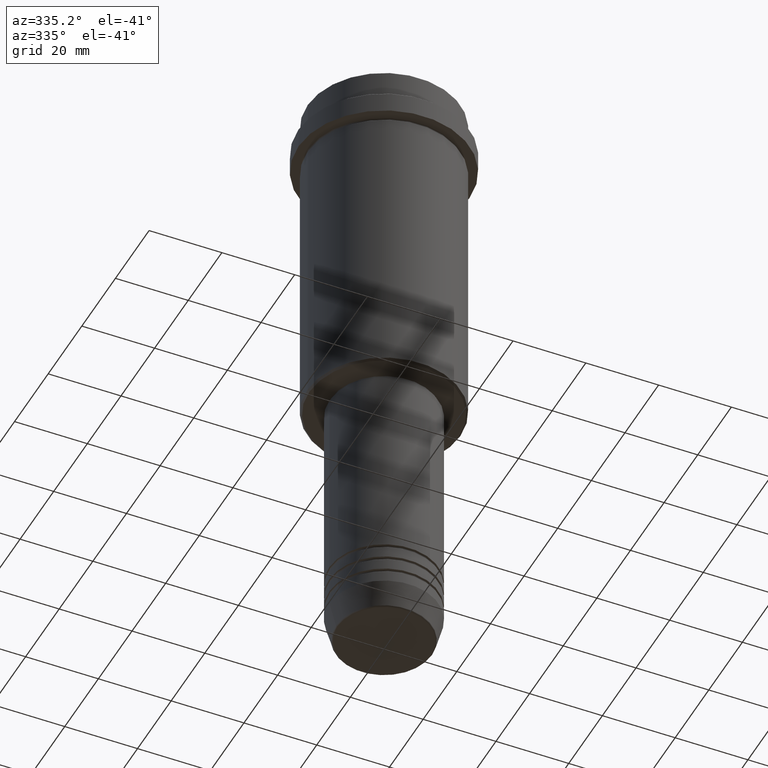
[diagram: clean part render]
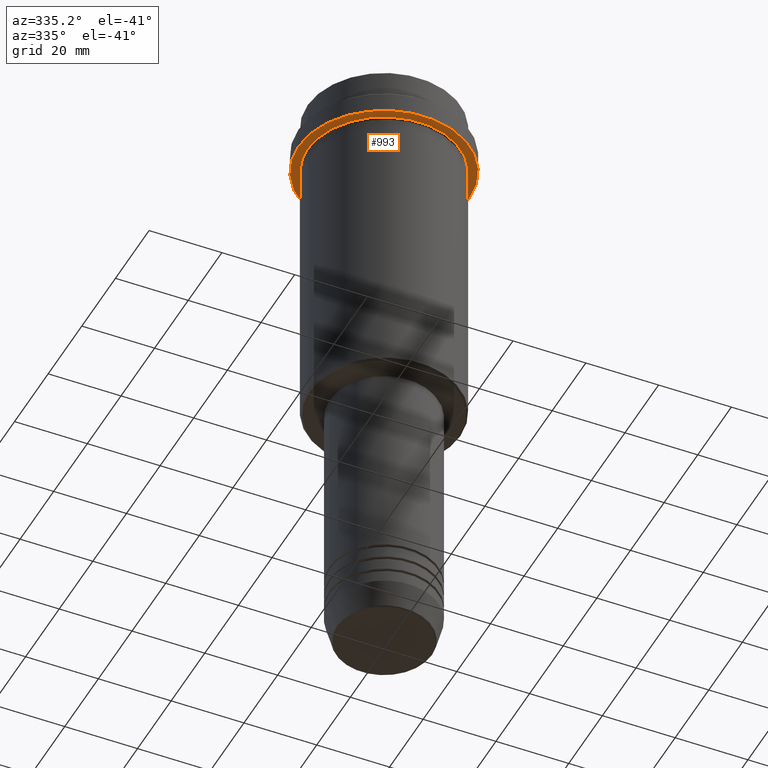
[diagram: same view with one face highlighted and labeled with its STEP entity id]
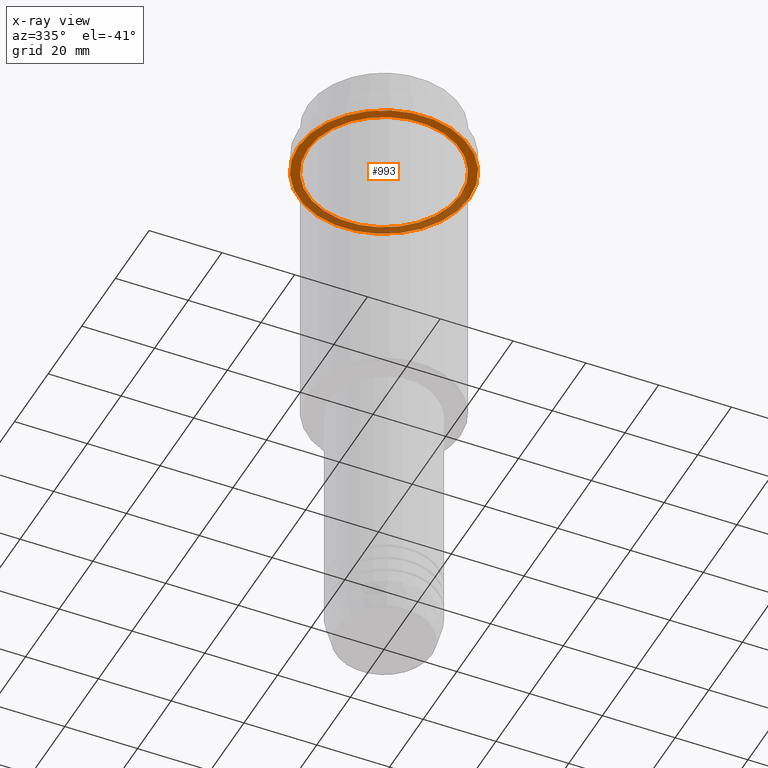
[diagram: x-ray of the same camera — body ghosted, the highlighted face saturated]
A machine part, auxiliary view. The second image highlights one B-rep face of the part: STEP entity #993.
The next image is the same camera in x-ray: the body ghosted, the highlighted face saturated — about 37% of this face is hidden behind the body in this view.
In plain terms, the highlighted planar face has unit normal (0, 0, -1).
Its self-contained STEP definition (entity closure, byte-faithful):
#31 = VERTEX_POINT ( 'NONE', #1309 ) ;
#46 = CARTESIAN_POINT ( 'NONE',  ( 20.99999999999999289, 2.571758278209440872E-15, -15.00000000000000178 ) ) ;
#84 = AXIS2_PLACEMENT_3D ( 'NONE', #572, #687, #551 ) ;
#150 = EDGE_CURVE ( 'NONE', #265, #716, #266, .T. ) ;
#154 = CARTESIAN_POINT ( 'NONE',  ( 0.000000000000000000, 0.000000000000000000, -15.00000000000000178 ) ) ;
#168 = ORIENTED_EDGE ( 'NONE', *, *, #150, .T. ) ;
#187 = EDGE_LOOP ( 'NONE', ( #855, #168 ) ) ;
#200 = CIRCLE ( 'NONE', #999, 23.50000000000000355 ) ;
#249 = PLANE ( 'NONE',  #84 ) ;
#265 = VERTEX_POINT ( 'NONE', #46 ) ;
#266 = CIRCLE ( 'NONE', #1402, 20.99999999999999289 ) ;
#293 = DIRECTION ( 'NONE',  ( -0.000000000000000000, -0.000000000000000000, 1.000000000000000000 ) ) ;
#342 = VERTEX_POINT ( 'NONE', #949 ) ;
#365 = CARTESIAN_POINT ( 'NONE',  ( 0.000000000000000000, 0.000000000000000000, -15.00000000000000178 ) ) ;
#430 = DIRECTION ( 'NONE',  ( 1.000000000000000000, 0.000000000000000000, 0.000000000000000000 ) ) ;
#432 = CIRCLE ( 'NONE', #709, 20.99999999999999289 ) ;
#449 = DIRECTION ( 'NONE',  ( -0.000000000000000000, -0.000000000000000000, 1.000000000000000000 ) ) ;
#459 = DIRECTION ( 'NONE',  ( -1.000000000000000000, 0.000000000000000000, 0.000000000000000000 ) ) ;
#551 = DIRECTION ( 'NONE',  ( -1.000000000000000000, 0.000000000000000000, -0.000000000000000000 ) ) ;
#562 = FACE_OUTER_BOUND ( 'NONE', #1146, .T. ) ;
#572 = CARTESIAN_POINT ( 'NONE',  ( 0.000000000000000000, 23.50000000000000355, -15.00000000000000178 ) ) ;
#687 = DIRECTION ( 'NONE',  ( 0.000000000000000000, 0.000000000000000000, -1.000000000000000000 ) ) ;
#709 = AXIS2_PLACEMENT_3D ( 'NONE', #365, #449, #459 ) ;
#716 = VERTEX_POINT ( 'NONE', #851 ) ;
#837 = EDGE_CURVE ( 'NONE', #31, #342, #200, .T. ) ;
#851 = CARTESIAN_POINT ( 'NONE',  ( -20.99999999999999289, 0.000000000000000000, -15.00000000000000178 ) ) ;
#855 = ORIENTED_EDGE ( 'NONE', *, *, #948, .T. ) ;
#868 = CIRCLE ( 'NONE', #1299, 23.50000000000000355 ) ;
#906 = DIRECTION ( 'NONE',  ( 1.000000000000000000, 0.000000000000000000, 0.000000000000000000 ) ) ;
#948 = EDGE_CURVE ( 'NONE', #716, #265, #432, .T. ) ;
#949 = CARTESIAN_POINT ( 'NONE',  ( -23.50000000000000711, 2.877919977996281109E-15, -15.00000000000000000 ) ) ;
#973 = CARTESIAN_POINT ( 'NONE',  ( 0.000000000000000000, 0.000000000000000000, -15.00000000000000000 ) ) ;
#993 = ADVANCED_FACE ( 'NONE', ( #1210, #562 ), #249, .T. ) ;
#998 = CARTESIAN_POINT ( 'NONE',  ( 0.000000000000000000, 0.000000000000000000, -15.00000000000000000 ) ) ;
#999 = AXIS2_PLACEMENT_3D ( 'NONE', #998, #1324, #906 ) ;
#1105 = ORIENTED_EDGE ( 'NONE', *, *, #1287, .F. ) ;
#1146 = EDGE_LOOP ( 'NONE', ( #1387, #1105 ) ) ;
#1210 = FACE_BOUND ( 'NONE', #187, .T. ) ;
#1236 = DIRECTION ( 'NONE',  ( -0.000000000000000000, -0.000000000000000000, 1.000000000000000000 ) ) ;
#1287 = EDGE_CURVE ( 'NONE', #342, #31, #868, .T. ) ;
#1299 = AXIS2_PLACEMENT_3D ( 'NONE', #973, #293, #430 ) ;
#1309 = CARTESIAN_POINT ( 'NONE',  ( 23.50000000000000355, 0.000000000000000000, -15.00000000000000000 ) ) ;
#1324 = DIRECTION ( 'NONE',  ( -0.000000000000000000, -0.000000000000000000, 1.000000000000000000 ) ) ;
#1349 = DIRECTION ( 'NONE',  ( -1.000000000000000000, 0.000000000000000000, 0.000000000000000000 ) ) ;
#1387 = ORIENTED_EDGE ( 'NONE', *, *, #837, .F. ) ;
#1402 = AXIS2_PLACEMENT_3D ( 'NONE', #154, #1236, #1349 ) ;